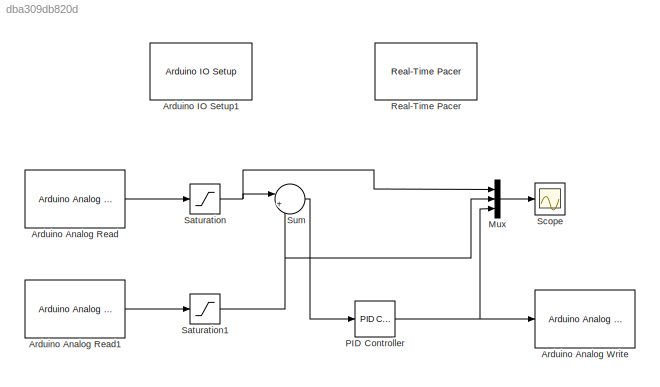
MODEL slx_dba309db820d
KIND model
CONFIG AbsTol = auto
CONFIG FixedStep = auto
CONFIG MaxStep = auto
CONFIG MinStep = auto
CONFIG RelTol = 1e-3
CONFIG SampleTimeConstraint = Unconstrained
CONFIG Solver = FixedStepDiscrete
CONFIG SolverMode = Auto
CONFIG SolverName = FixedStepDiscrete
CONFIG StartTime = 0.0
CONFIG StopTime = 10
BLOCK [Reference] Arduino Analog Read  REF=arduino_io_lib/Arduino Analog Read
  Ports = [0, 1]
  SourceBlock = arduino_io_lib/Arduino Analog Read
  SourceType = Arduino IO Analog Read
BLOCK [Reference] Arduino Analog Read1  REF=arduino_io_lib/Arduino Analog Read
  Ports = [0, 1]
  SourceBlock = arduino_io_lib/Arduino Analog Read
  SourceType = Arduino IO Analog Read
BLOCK [Reference] Arduino Analog Write  REF=arduino_io_lib/Arduino Analog Write
  Ports = [1]
  SourceBlock = arduino_io_lib/Arduino Analog Write
  SourceType = Arduino IO analog Write (PWM)
BLOCK [Reference] Arduino IO Setup1  REF=arduino_io_lib/Arduino IO Setup
  Ports = []
  Priority = 3
  SourceBlock = arduino_io_lib/Arduino IO Setup
  SourceType = Arduino IO Setup
BLOCK [Mux] Mux
  DisplayOption = bar
  Inputs = 3
  Ports = [3, 1]
BLOCK [Reference] PID Controller  REF=simulink/Continuous/PID Controller
  Ports = [1, 1]
  SourceBlock = simulink/Continuous/PID Controller
  SourceType = PID 1dof
BLOCK [Reference] Real-Time Pacer  REF=arduino_io_lib/Real-Time Pacer
  Ports = []
  SourceBlock = arduino_io_lib/Real-Time Pacer
  SourceType = RealTime_Pacer
BLOCK [Saturate] Saturation
  InputPortMap = u0
  LowerLimit = 650
  Ports = [1, 1]
  UpperLimit = 730
BLOCK [Saturate] Saturation1
  InputPortMap = u0
  LowerLimit = 650
  Ports = [1, 1]
  UpperLimit = 800
BLOCK [Scope] Scope
  Ports = [1]
  ScopeSpecificationString = Simulink.scopes.TimeScopeBlockCfg('CurrentConfiguration', extmgr.ConfigurationSet(extmgr.Configuration('Core','General UI',true),extmgr.Configuration('Core','Source UI',true),extmgr.Configuration('Sources','WiredSimulink',true,'DataLoggingSaveFormat','StructureWithTime','DataLoggingLimitDataPoints',true,'DataLoggingDecimation','1','DataLoggingDecimateData',true),extmgr.Configuration('Visuals','Tim...<+2091ch>
BLOCK [Sum] Sum
  IconShape = round
  InputSameDT = off
  Inputs = |+-
  OutDataTypeStr = Inherit: Inherit via internal rule
  Ports = [2, 1]
  SaturateOnIntegerOverflow = off
LINE Arduino Analog Read1:1 -> Saturation1:1
LINE Arduino Analog Read:1 -> Saturation:1
LINE Mux:1 -> Scope:1
NET PID Controller:1 -> Arduino Analog Write:1, Mux:3
NET Saturation1:1 -> Mux:2, Sum:2
NET Saturation:1 -> Mux:1, Sum:1
LINE Sum:1 -> PID Controller:1
note: NET lines group one-source signal fan-out (src -> all destinations, sorted); 1:1 wires keep LINE
